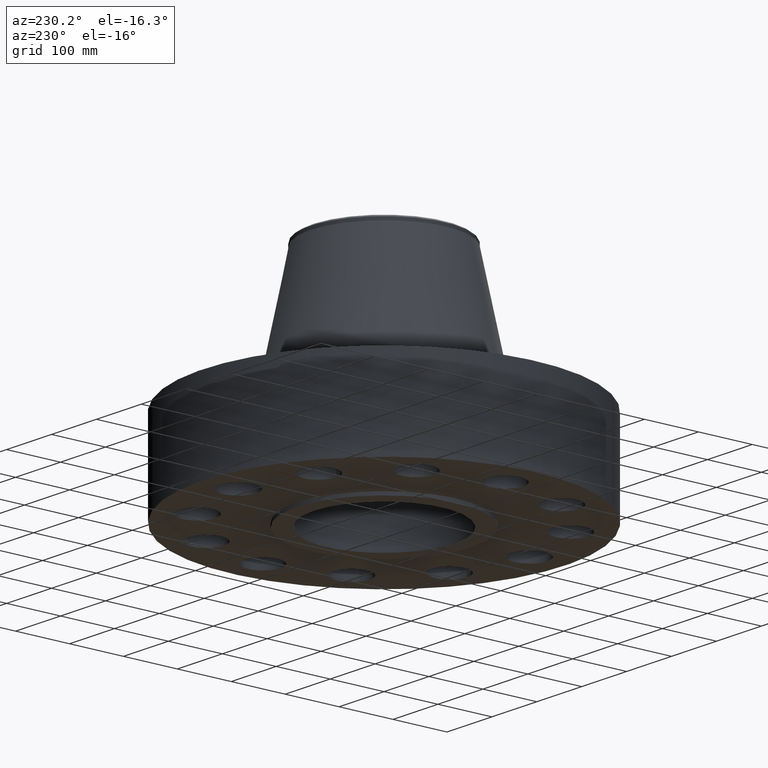
[diagram: clean part render]
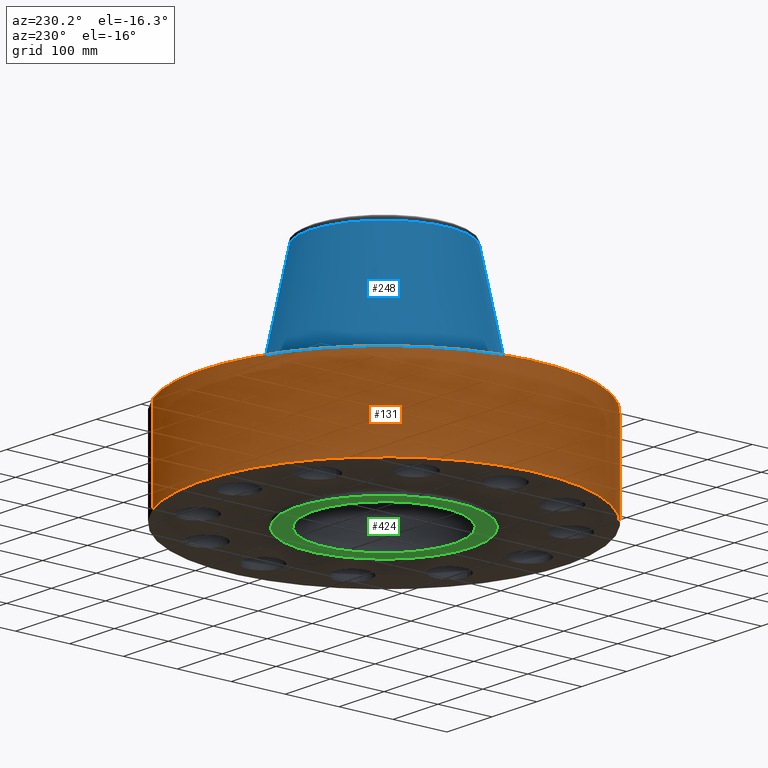
[diagram: same view with three faces highlighted in distinct colors, each labeled with its STEP entity id]
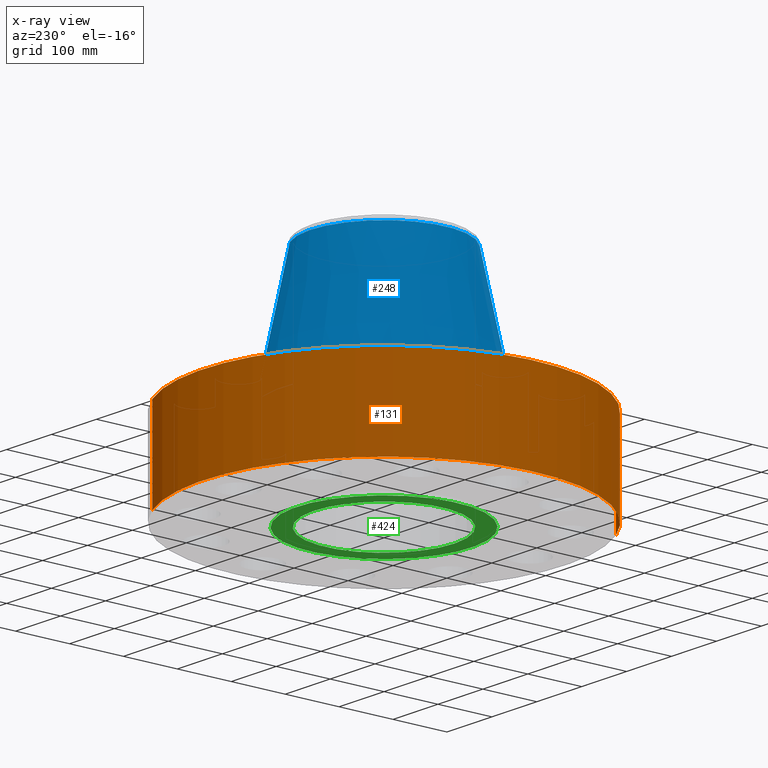
[diagram: x-ray of the same camera — body ghosted, the three highlighted faces saturated]
A machine part, auxiliary view with three faces highlighted in distinct colors.
The next image is the same camera in x-ray (body ghosted, the three faces saturated) — at least one of them is partly hidden behind the body in this view.
Their STEP definitions:

[orange] entity #131 — the highlighted cylindrical surface (partial cylindrical patch) has radius 336.55 mm, axis along (0, 0, -1).
#95=AXIS2_PLACEMENT_3D('Cylinder Axis2P3D',#92,#93,#94) ;
#99=AXIS2_PLACEMENT_3D('Circle Axis2P3D',#97,#98,$) ;
#115=AXIS2_PLACEMENT_3D('Circle Axis2P3D',#113,#114,$) ;
#92=CARTESIAN_POINT('Axis2P3D Location',(0.,0.,8.12500000003)) ;
#97=CARTESIAN_POINT('Axis2P3D Location',(0.,0.,1.1189649382E-015)) ;
#101=CARTESIAN_POINT('Vertex',(-6.35238838653,-11.6279689451,0.)) ;
#103=CARTESIAN_POINT('Vertex',(6.35238838653,11.6279689451,0.)) ;
#106=CARTESIAN_POINT('Line Origine',(-6.35238838653,-11.6279689451,3.25000000001)) ;
#110=CARTESIAN_POINT('Vertex',(-6.35238838653,-11.6279689451,6.50000000003)) ;
#113=CARTESIAN_POINT('Axis2P3D Location',(0.,0.,6.50000000003)) ;
#117=CARTESIAN_POINT('Vertex',(6.35238838653,11.6279689451,6.50000000003)) ;
#120=CARTESIAN_POINT('Line Origine',(6.35238838653,11.6279689451,3.25000000001)) ;
#93=DIRECTION('Axis2P3D Direction',(0.,0.,-0.0393700787402)) ;
#94=DIRECTION('Axis2P3D XDirection',(0.0188750212049,0.0345504945626,0.)) ;
#98=DIRECTION('Axis2P3D Direction',(0.,0.,-0.0393700787402)) ;
#107=DIRECTION('Vector Direction',(0.,0.,-0.0393700787402)) ;
#114=DIRECTION('Axis2P3D Direction',(0.,0.,-0.0393700787402)) ;
#121=DIRECTION('Vector Direction',(0.,0.,-0.0393700787402)) ;
#108=VECTOR('Line Direction',#107,0.0393700787402) ;
#122=VECTOR('Line Direction',#121,0.0393700787402) ;
#126=ORIENTED_EDGE('',*,*,#105,.F.) ;
#127=ORIENTED_EDGE('',*,*,#112,.T.) ;
#128=ORIENTED_EDGE('',*,*,#119,.T.) ;
#129=ORIENTED_EDGE('',*,*,#124,.F.) ;
#131=ADVANCED_FACE('PartBody',(#130),#96,.T.) ;
#100=CIRCLE('generated circle',#99,13.2500000001) ;
#116=CIRCLE('generated circle',#115,13.2500000001) ;
#96=CYLINDRICAL_SURFACE('generated cylinder',#95,13.2500000001) ;
#105=EDGE_CURVE('',#102,#104,#100,.T.) ;
#112=EDGE_CURVE('',#102,#111,#109,.F.) ;
#119=EDGE_CURVE('',#111,#118,#116,.T.) ;
#124=EDGE_CURVE('',#104,#118,#123,.F.) ;
#125=EDGE_LOOP('',(#126,#127,#128,#129)) ;
#130=FACE_OUTER_BOUND('',#125,.T.) ;
#109=LINE('Line',#106,#108) ;
#123=LINE('Line',#120,#122) ;
#102=VERTEX_POINT('',#101) ;
#104=VERTEX_POINT('',#103) ;
#111=VERTEX_POINT('',#110) ;
#118=VERTEX_POINT('',#117) ;

[blue] entity #248 — the highlighted conical surface has half-angle 11.73 deg.
#196=AXIS2_PLACEMENT_3D('Circle Axis2P3D',#194,#195,$) ;
#209=AXIS2_PLACEMENT_3D('Cone Axis2P3D',#206,#207,#208) ;
#239=AXIS2_PLACEMENT_3D('Circle Axis2P3D',#237,#238,$) ;
#167=CARTESIAN_POINT('Vertex',(3.52624644359,6.45475081872,6.5956043257)) ;
#174=CARTESIAN_POINT('Vertex',(-3.52624644359,-6.45475081872,6.5956043257)) ;
#194=CARTESIAN_POINT('Axis2P3D Location',(0.,0.,6.5956043257)) ;
#206=CARTESIAN_POINT('Axis2P3D Location',(0.,0.,16.1323672285)) ;
#211=CARTESIAN_POINT('Line Origine',(3.0515793568,5.58587854445,11.3639857771)) ;
#215=CARTESIAN_POINT('Vertex',(2.57691227001,4.71700627018,16.1323672285)) ;
#222=CARTESIAN_POINT('Vertex',(-2.57691227001,-4.71700627018,16.1323672285)) ;
#225=CARTESIAN_POINT('Line Origine',(-3.0515793568,-5.58587854445,11.3639857771)) ;
#237=CARTESIAN_POINT('Axis2P3D Location',(0.,0.,16.1323672285)) ;
#195=DIRECTION('Axis2P3D Direction',(0.,0.,-0.0393700787402)) ;
#207=DIRECTION('Axis2P3D Direction',(0.,0.,-0.0393700787402)) ;
#208=DIRECTION('Axis2P3D XDirection',(-0.0188750212049,-0.0345504945626,0.)) ;
#212=DIRECTION('Vector Direction',(0.00383724058593,0.00702402177779,-0.0385479156733)) ;
#226=DIRECTION('Vector Direction',(-0.00383724058593,-0.00702402177779,-0.0385479156733)) ;
#238=DIRECTION('Axis2P3D Direction',(0.,0.,-0.0393700787402)) ;
#213=VECTOR('Line Direction',#212,0.0393700787402) ;
#227=VECTOR('Line Direction',#226,0.0393700787402) ;
#243=ORIENTED_EDGE('',*,*,#198,.F.) ;
#244=ORIENTED_EDGE('',*,*,#229,.T.) ;
#245=ORIENTED_EDGE('',*,*,#241,.T.) ;
#246=ORIENTED_EDGE('',*,*,#217,.F.) ;
#248=ADVANCED_FACE('PartBody',(#247),#210,.T.) ;
#197=CIRCLE('generated circle',#196,7.35514936033) ;
#240=CIRCLE('generated circle',#239,5.37500000002) ;
#210=CONICAL_SURFACE('Cone',#209,5.37500000002,0.204724362338) ;
#198=EDGE_CURVE('',#175,#168,#197,.T.) ;
#217=EDGE_CURVE('',#168,#216,#214,.F.) ;
#229=EDGE_CURVE('',#175,#223,#228,.F.) ;
#241=EDGE_CURVE('',#223,#216,#240,.T.) ;
#242=EDGE_LOOP('',(#243,#244,#245,#246)) ;
#247=FACE_OUTER_BOUND('',#242,.T.) ;
#214=LINE('Line',#211,#213) ;
#228=LINE('Line',#225,#227) ;
#168=VERTEX_POINT('',#167) ;
#175=VERTEX_POINT('',#174) ;
#216=VERTEX_POINT('',#215) ;
#223=VERTEX_POINT('',#222) ;

[green] entity #424 — the highlighted planar face has unit normal (0, 0, -1).
#363=AXIS2_PLACEMENT_3D('Circle Axis2P3D',#361,#362,$) ;
#387=AXIS2_PLACEMENT_3D('Circle Axis2P3D',#385,#386,$) ;
#400=AXIS2_PLACEMENT_3D('Plane Axis2P3D',#397,#398,#399) ;
#404=AXIS2_PLACEMENT_3D('Circle Axis2P3D',#402,#403,$) ;
#413=AXIS2_PLACEMENT_3D('Circle Axis2P3D',#411,#412,$) ;
#358=CARTESIAN_POINT('Vertex',(2.45705588536,4.49761062971,-0.250000000001)) ;
#361=CARTESIAN_POINT('Axis2P3D Location',(0.,0.,-0.250000000001)) ;
#365=CARTESIAN_POINT('Vertex',(-2.45705588536,-4.49761062971,-0.250000000001)) ;
#385=CARTESIAN_POINT('Axis2P3D Location',(0.,0.,-0.250000000001)) ;
#397=CARTESIAN_POINT('Axis2P3D Location',(0.,5.12500000002,-0.250000000001)) ;
#402=CARTESIAN_POINT('Axis2P3D Location',(0.,0.,-0.250000000001)) ;
#406=CARTESIAN_POINT('Vertex',(-3.05633780861,-5.59458883207,-0.250000000001)) ;
#408=CARTESIAN_POINT('Vertex',(3.05633780861,5.59458883207,-0.250000000001)) ;
#411=CARTESIAN_POINT('Axis2P3D Location',(0.,0.,-0.250000000001)) ;
#362=DIRECTION('Axis2P3D Direction',(0.,0.,-0.0393700787402)) ;
#386=DIRECTION('Axis2P3D Direction',(0.,0.,-0.0393700787402)) ;
#398=DIRECTION('Axis2P3D Direction',(0.,0.,-0.0393700787402)) ;
#399=DIRECTION('Axis2P3D XDirection',(0.0393700787402,0.,0.)) ;
#403=DIRECTION('Axis2P3D Direction',(0.,0.,-0.0393700787402)) ;
#412=DIRECTION('Axis2P3D Direction',(0.,0.,-0.0393700787402)) ;
#417=ORIENTED_EDGE('',*,*,#410,.T.) ;
#418=ORIENTED_EDGE('',*,*,#415,.T.) ;
#421=ORIENTED_EDGE('',*,*,#367,.F.) ;
#422=ORIENTED_EDGE('',*,*,#389,.F.) ;
#423=FACE_BOUND('',#420,.T.) ;
#424=ADVANCED_FACE('PartBody',(#419,#423),#401,.T.) ;
#364=CIRCLE('generated circle',#363,5.12500000002) ;
#388=CIRCLE('generated circle',#387,5.12500000002) ;
#405=CIRCLE('generated circle',#404,6.37500000003) ;
#414=CIRCLE('generated circle',#413,6.37500000003) ;
#367=EDGE_CURVE('',#359,#366,#364,.T.) ;
#389=EDGE_CURVE('',#366,#359,#388,.T.) ;
#410=EDGE_CURVE('',#407,#409,#405,.T.) ;
#415=EDGE_CURVE('',#409,#407,#414,.T.) ;
#416=EDGE_LOOP('',(#417,#418)) ;
#420=EDGE_LOOP('',(#421,#422)) ;
#419=FACE_OUTER_BOUND('',#416,.T.) ;
#401=PLANE('',#400) ;
#359=VERTEX_POINT('',#358) ;
#366=VERTEX_POINT('',#365) ;
#407=VERTEX_POINT('',#406) ;
#409=VERTEX_POINT('',#408) ;